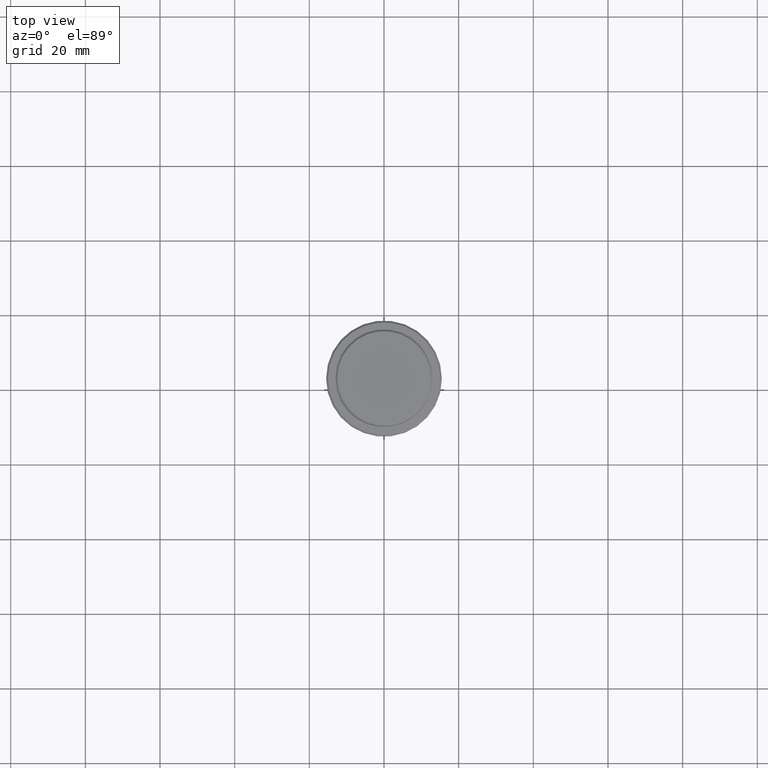
[diagram: clean part render]
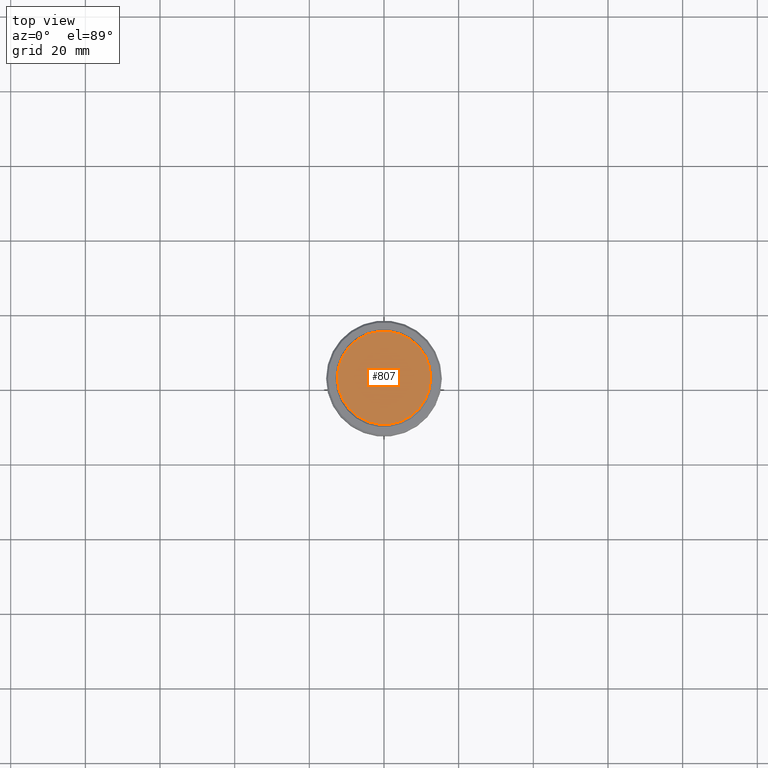
[diagram: same view with one face highlighted and labeled with its STEP entity id]
A machine part, top view. The second image highlights one B-rep face of the part: STEP entity #807.
In plain terms, the highlighted planar face has unit normal (0, -0, 1).
Its self-contained STEP definition (entity closure, byte-faithful):
#1 = DIRECTION ( 'NONE',  ( 1.000000000000000000, 0.000000000000000000, 0.000000000000000000 ) ) ;
#21 = EDGE_CURVE ( 'NONE', #1272, #1056, #1153, .T. ) ;
#76 = CIRCLE ( 'NONE', #103, 12.50000000000001243 ) ;
#103 = AXIS2_PLACEMENT_3D ( 'NONE', #635, #750, #231 ) ;
#144 = CARTESIAN_POINT ( 'NONE',  ( -12.50000000000001243, 0.000000000000000000, 0.000000000000000000 ) ) ;
#215 = CARTESIAN_POINT ( 'NONE',  ( 0.000000000000000000, 0.000000000000000000, 0.000000000000000000 ) ) ;
#216 = CARTESIAN_POINT ( 'NONE',  ( 0.000000000000000000, 0.000000000000000000, 0.000000000000000000 ) ) ;
#231 = DIRECTION ( 'NONE',  ( 1.000000000000000000, 0.000000000000000000, 0.000000000000000000 ) ) ;
#305 = DIRECTION ( 'NONE',  ( 1.000000000000000000, 0.000000000000000000, 0.000000000000000000 ) ) ;
#308 = DIRECTION ( 'NONE',  ( 0.000000000000000000, -0.000000000000000000, 1.000000000000000000 ) ) ;
#330 = EDGE_LOOP ( 'NONE', ( #742, #965 ) ) ;
#480 = AXIS2_PLACEMENT_3D ( 'NONE', #215, #1219, #1 ) ;
#562 = CARTESIAN_POINT ( 'NONE',  ( 12.50000000000001243, 1.561424668912876097E-15, 0.000000000000000000 ) ) ;
#635 = CARTESIAN_POINT ( 'NONE',  ( 0.000000000000000000, 0.000000000000000000, 0.000000000000000000 ) ) ;
#742 = ORIENTED_EDGE ( 'NONE', *, *, #890, .T. ) ;
#750 = DIRECTION ( 'NONE',  ( -0.000000000000000000, -0.000000000000000000, 1.000000000000000000 ) ) ;
#807 = ADVANCED_FACE ( 'NONE', ( #1404 ), #1091, .T. ) ;
#813 = AXIS2_PLACEMENT_3D ( 'NONE', #216, #308, #305 ) ;
#890 = EDGE_CURVE ( 'NONE', #1056, #1272, #76, .T. ) ;
#965 = ORIENTED_EDGE ( 'NONE', *, *, #21, .T. ) ;
#1056 = VERTEX_POINT ( 'NONE', #144 ) ;
#1091 = PLANE ( 'NONE',  #813 ) ;
#1153 = CIRCLE ( 'NONE', #480, 12.50000000000001243 ) ;
#1219 = DIRECTION ( 'NONE',  ( -0.000000000000000000, -0.000000000000000000, 1.000000000000000000 ) ) ;
#1272 = VERTEX_POINT ( 'NONE', #562 ) ;
#1404 = FACE_OUTER_BOUND ( 'NONE', #330, .T. ) ;